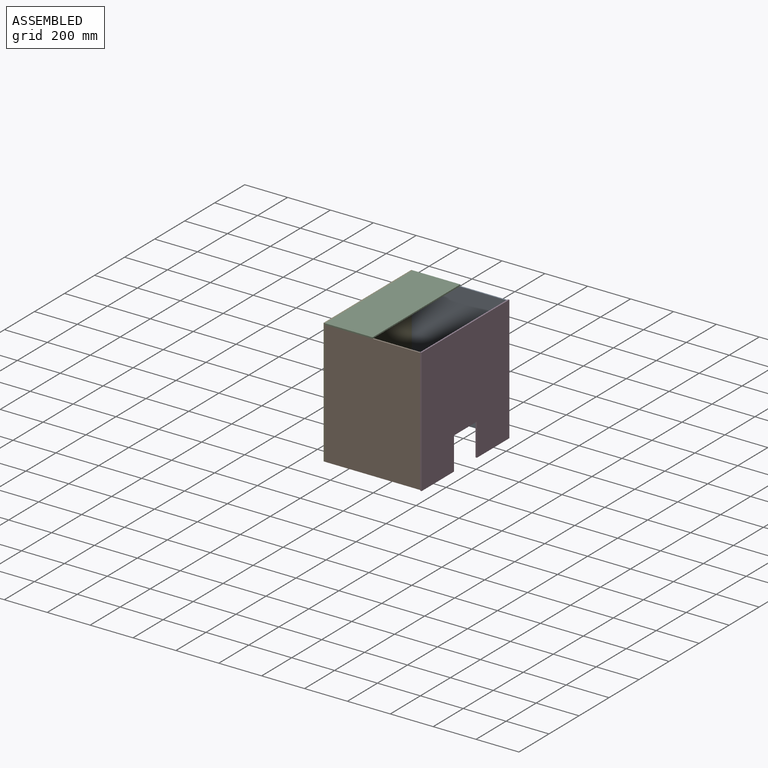
[diagram: assembled view]
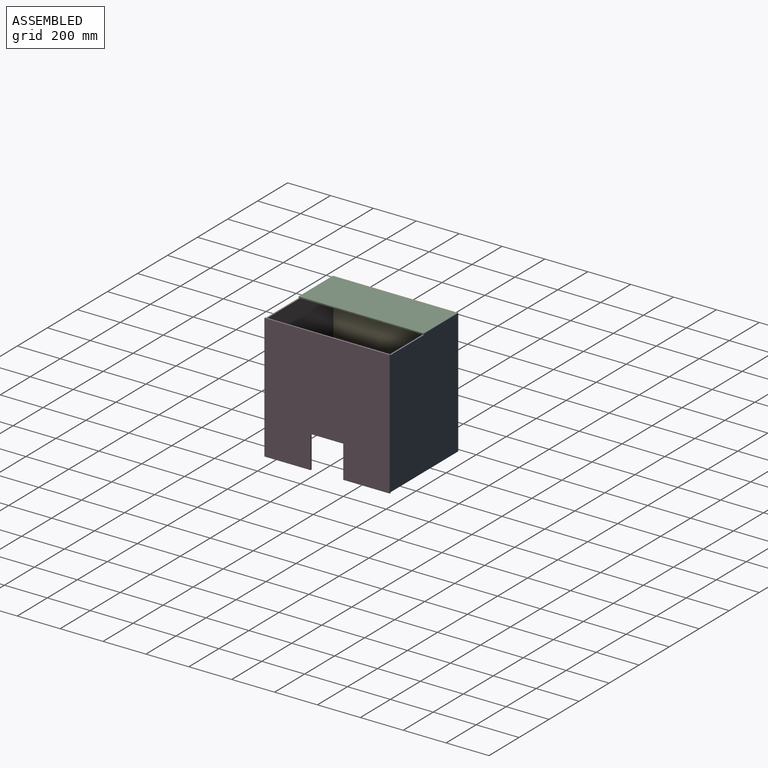
[diagram: assembled view, second angle]
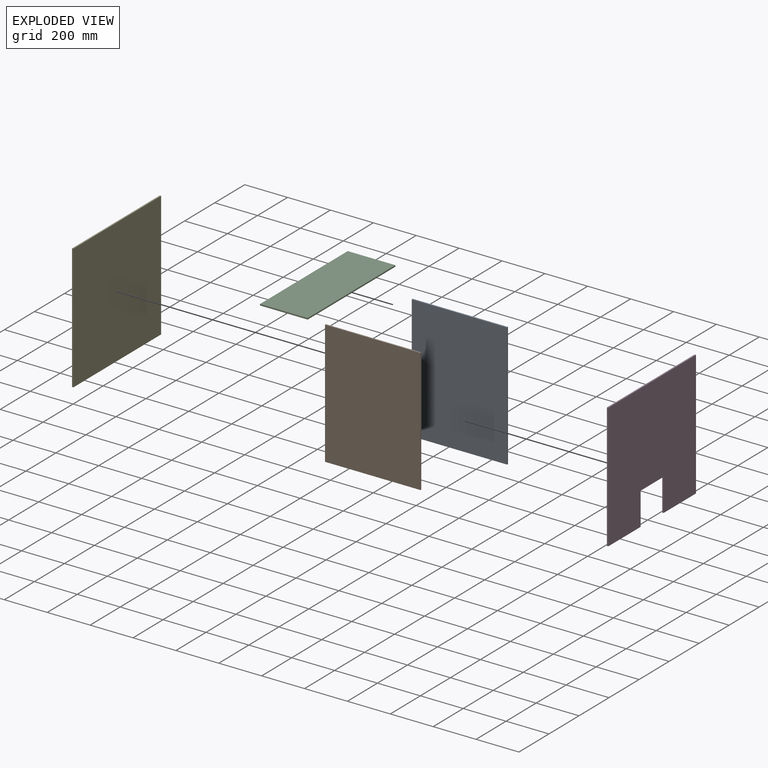
[diagram: exploded view]
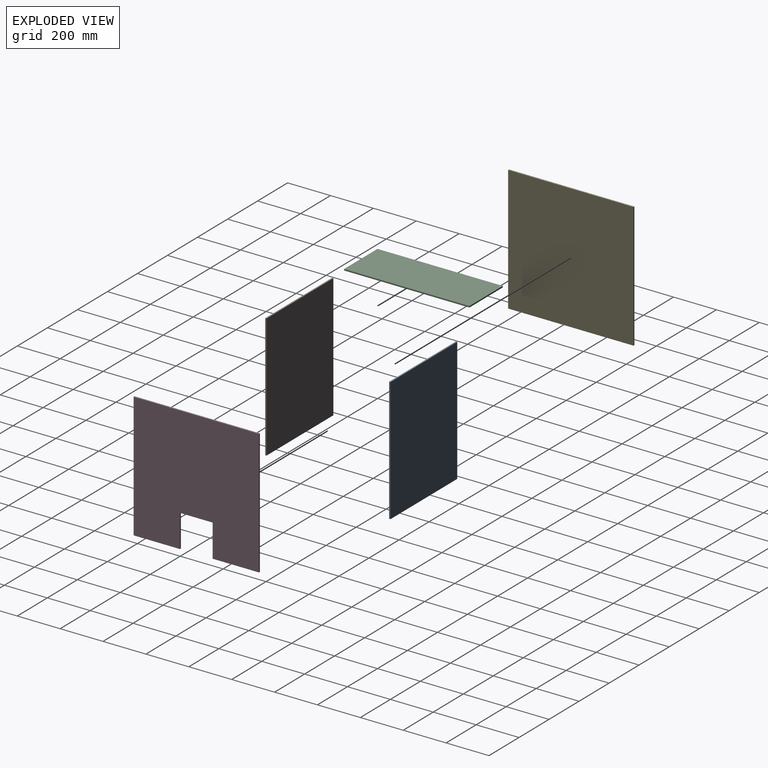
[diagram: exploded view, second angle]
ASSEMBLY  parts=5 mates=4
PART A: 6 faces, bbox 444.5x6.4x577.9 mm
  f0: plane 444.5x6.35mm, normal (0,0,1), area 2822.6mm2, adj f1,f3,f4,f5
  f1: plane 577.85x6.35mm, normal (-1,0,0), area 3669.3mm2, adj f0,f2,f4,f5
  f2: plane 444.5x6.35mm, normal (0,0,-1), area 2822.6mm2, adj f1,f3,f4,f5
  f3: plane 577.85x6.35mm, normal (1,0,0), area 3669.3mm2, adj f0,f2,f4,f5
  f4: plane 577.85x444.5mm, normal (0,-1,0), area 256854.3mm2, adj f0,f1,f2,f3
  f5: plane 577.85x444.5mm, normal (0,1,0), area 256854.3mm2, adj f0,f1,f2,f3
PART B: same geometry as A
PART C: 6 faces, bbox 222.3x584.2x6.4 mm
  f0: plane 222.25x6.35mm, normal (0,1,0), area 1411.3mm2, adj f1,f3,f4,f5
  f1: plane 584.2x6.35mm, normal (-1,0,0), area 3709.7mm2, adj f0,f2,f4,f5
  f2: plane 222.25x6.35mm, normal (0,-1,0), area 1411.3mm2, adj f1,f3,f4,f5
  f3: plane 584.2x6.35mm, normal (1,0,0), area 3709.7mm2, adj f0,f2,f4,f5
  f4: plane 584.2x222.25mm, normal (0,0,1), area 129838.4mm2, adj f0,f1,f2,f3
  f5: plane 584.2x222.25mm, normal (0,0,-1), area 129838.4mm2, adj f0,f1,f2,f3
PART D: 10 faces, bbox 6.4x584.2x584.2 mm
  f0: plane 215.9x6.35mm, normal (0,0,-1), area 1371mm2, adj f1,f2,f6,f8
  f1: plane 584.2x584.2mm, normal (1,0,0), area 318063.9mm2, adj f0,f3,f4,f5,f6,f7,f8,f9
  f2: plane 584.2x584.2mm, normal (-1,0,0), area 318063.9mm2, adj f0,f3,f4,f5,f6,f7,f8,f9
  f3: plane 584.2x6.35mm, normal (0,0,1), area 3709.7mm2, adj f1,f2,f4,f6
  f4: plane 584.2x6.35mm, normal (0,-1,0), area 3709.7mm2, adj f1,f2,f3,f5
  f5: plane 215.9x6.35mm, normal (0,0,-1), area 1371mm2, adj f1,f2,f4,f7
  f6: plane 584.2x6.35mm, normal (0,1,0), area 3709.7mm2, adj f0,f1,f2,f3
  f7: plane 152.4x6.35mm, normal (0,1,0), area 967.7mm2, adj f1,f2,f5,f9
  f8: plane 152.4x6.35mm, normal (0,-1,0), area 967.7mm2, adj f0,f1,f2,f9
  f9: plane 152.4x6.35mm, normal (0,0,-1), area 967.7mm2, adj f1,f2,f7,f8
PART E: 6 faces, bbox 6.4x584.2x584.2 mm
  f0: plane 584.2x6.35mm, normal (0,0,1), area 3709.7mm2, adj f1,f3,f4,f5
  f1: plane 584.2x6.35mm, normal (0,-1,0), area 3709.7mm2, adj f0,f2,f4,f5
  f2: plane 584.2x6.35mm, normal (0,0,-1), area 3709.7mm2, adj f1,f3,f4,f5
  f3: plane 584.2x6.35mm, normal (0,1,0), area 3709.7mm2, adj f0,f2,f4,f5
  f4: plane 584.2x584.2mm, normal (1,0,0), area 341289.6mm2, adj f0,f1,f2,f3
  f5: plane 584.2x584.2mm, normal (-1,0,0), area 341289.6mm2, adj f0,f1,f2,f3
PLACE A t=(-145.1,83.64,-476.91)mm
PLACE B t=(-145.1,-494.21,-476.91)mm
PLACE C t=(-126.57,-386.62,87.69)mm
PLACE D t=(89.88,-202.27,-339.52)mm
PLACE E t=(-360.97,-182.02,-313.26)mm
MATE fastened D.f2 <-> B.f3  axis (-1,0,0) through (89.88,-500.56,-201.23)mm
MATE fastened E.f4 <-> C.f1  axis (1,0,0) through (-354.62,-208.46,94.04)mm
MATE fastened A.f0 <-> C.f5  axis (0,0,1) through (-354.62,83.64,87.69)mm
MATE fastened B.f0 <-> C.f5  axis (0,0,1) through (-354.62,-500.56,87.69)mm
